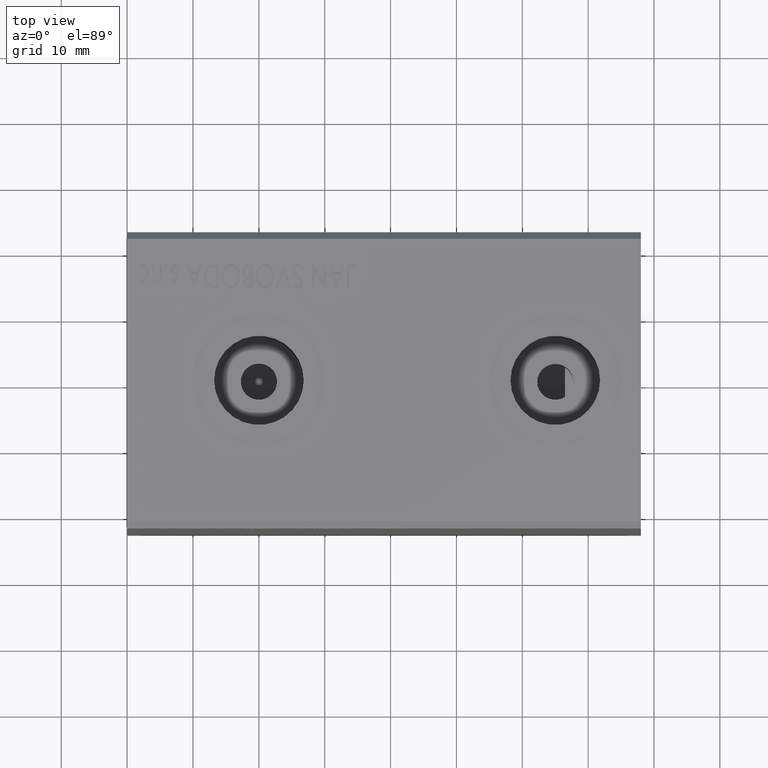
[diagram: clean part render]
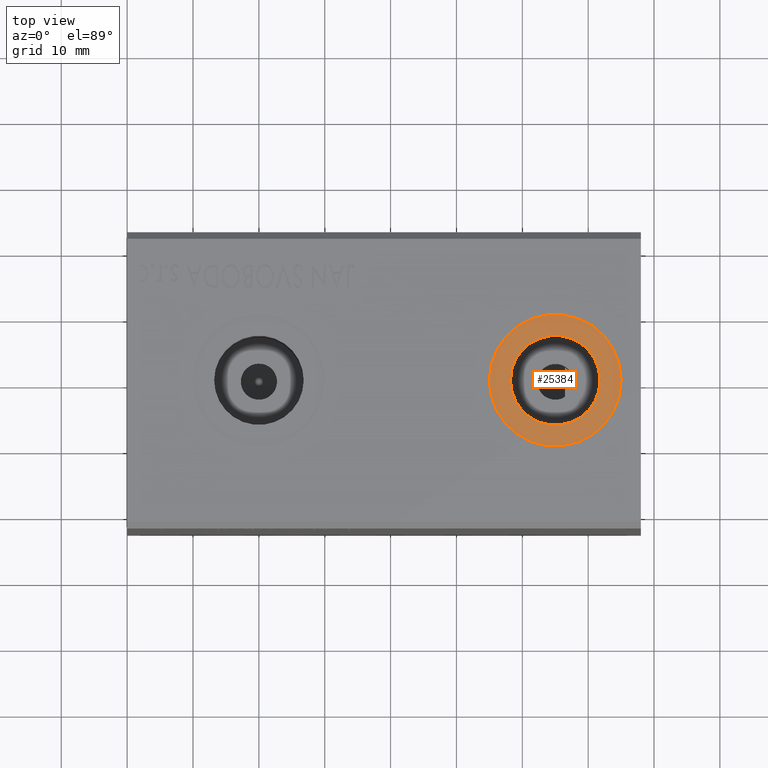
[diagram: same view with one face highlighted and labeled with its STEP entity id]
A machine part, top view. The second image highlights one B-rep face of the part: STEP entity #25384.
In plain terms, the highlighted planar face has unit normal (0, 0, 1).
Its self-contained STEP definition (entity closure, byte-faithful):
#72 = DIRECTION ( 'NONE',  ( 0.000000000000000000, 0.000000000000000000, 1.000000000000000000 ) ) ;
#654 = VERTEX_POINT ( 'NONE', #23886 ) ;
#688 = ORIENTED_EDGE ( 'NONE', *, *, #27217, .T. ) ;
#1987 = DIRECTION ( 'NONE',  ( 1.000000000000000000, 0.000000000000000000, -0.000000000000000000 ) ) ;
#4662 = CIRCLE ( 'NONE', #20441, 6.800000000000000711 ) ;
#5212 = FACE_OUTER_BOUND ( 'NONE', #28782, .T. ) ;
#6329 = CARTESIAN_POINT ( 'NONE',  ( 58.20000000000000284, -2.099391809845953265E-15, 32.39999999999999858 ) ) ;
#8803 = AXIS2_PLACEMENT_3D ( 'NONE', #17880, #38057, #1987 ) ;
#9476 = CIRCLE ( 'NONE', #16305, 6.800000000000000711 ) ;
#10203 = AXIS2_PLACEMENT_3D ( 'NONE', #14057, #17481, #10629 ) ;
#10426 = EDGE_LOOP ( 'NONE', ( #10892, #38585 ) ) ;
#10629 = DIRECTION ( 'NONE',  ( 1.000000000000000000, 0.000000000000000000, 0.000000000000000000 ) ) ;
#10630 = DIRECTION ( 'NONE',  ( 0.000000000000000000, 0.000000000000000000, 1.000000000000000000 ) ) ;
#10892 = ORIENTED_EDGE ( 'NONE', *, *, #19374, .F. ) ;
#14057 = CARTESIAN_POINT ( 'NONE',  ( 65.00000000000000000, -2.932151633266152588E-15, 32.39999999999999858 ) ) ;
#14058 = CARTESIAN_POINT ( 'NONE',  ( 65.00000000000000000, -2.932151633266152588E-15, 32.39999999999999858 ) ) ;
#16204 = CARTESIAN_POINT ( 'NONE',  ( 65.00000000000000000, -2.932151633266152588E-15, 32.39999999999999858 ) ) ;
#16305 = AXIS2_PLACEMENT_3D ( 'NONE', #33545, #72, #36763 ) ;
#16463 = AXIS2_PLACEMENT_3D ( 'NONE', #16204, #33144, #39164 ) ;
#16529 = CARTESIAN_POINT ( 'NONE',  ( 71.79999999999999716, -2.932151633266152588E-15, 32.39999999999999858 ) ) ;
#17481 = DIRECTION ( 'NONE',  ( 0.000000000000000000, 0.000000000000000000, 1.000000000000000000 ) ) ;
#17880 = CARTESIAN_POINT ( 'NONE',  ( 65.00000000000000000, -2.932151633266152588E-15, 32.39999999999999858 ) ) ;
#19374 = EDGE_CURVE ( 'NONE', #29954, #37979, #4662, .T. ) ;
#20441 = AXIS2_PLACEMENT_3D ( 'NONE', #14058, #10630, #32951 ) ;
#23886 = CARTESIAN_POINT ( 'NONE',  ( 54.99999999999999289, -1.707504834118798148E-15, 32.39999999999999858 ) ) ;
#24603 = EDGE_CURVE ( 'NONE', #37979, #29954, #9476, .T. ) ;
#24751 = FACE_BOUND ( 'NONE', #10426, .T. ) ;
#25384 = ADVANCED_FACE ( 'NONE', ( #24751, #5212 ), #31190, .T. ) ;
#26603 = ORIENTED_EDGE ( 'NONE', *, *, #34650, .T. ) ;
#27217 = EDGE_CURVE ( 'NONE', #654, #40315, #28725, .T. ) ;
#28725 = CIRCLE ( 'NONE', #10203, 10.00000000000000888 ) ;
#28782 = EDGE_LOOP ( 'NONE', ( #26603, #688 ) ) ;
#29954 = VERTEX_POINT ( 'NONE', #16529 ) ;
#31190 = PLANE ( 'NONE',  #8803 ) ;
#32951 = DIRECTION ( 'NONE',  ( 1.000000000000000000, 0.000000000000000000, 0.000000000000000000 ) ) ;
#33144 = DIRECTION ( 'NONE',  ( 0.000000000000000000, 0.000000000000000000, 1.000000000000000000 ) ) ;
#33545 = CARTESIAN_POINT ( 'NONE',  ( 65.00000000000000000, -2.932151633266152588E-15, 32.39999999999999858 ) ) ;
#34650 = EDGE_CURVE ( 'NONE', #40315, #654, #41153, .T. ) ;
#36763 = DIRECTION ( 'NONE',  ( 1.000000000000000000, 0.000000000000000000, 0.000000000000000000 ) ) ;
#37979 = VERTEX_POINT ( 'NONE', #6329 ) ;
#38042 = CARTESIAN_POINT ( 'NONE',  ( 75.00000000000001421, -2.932151633266152588E-15, 32.39999999999999858 ) ) ;
#38057 = DIRECTION ( 'NONE',  ( 0.000000000000000000, 0.000000000000000000, 1.000000000000000000 ) ) ;
#38585 = ORIENTED_EDGE ( 'NONE', *, *, #24603, .F. ) ;
#39164 = DIRECTION ( 'NONE',  ( 1.000000000000000000, 0.000000000000000000, 0.000000000000000000 ) ) ;
#40315 = VERTEX_POINT ( 'NONE', #38042 ) ;
#41153 = CIRCLE ( 'NONE', #16463, 10.00000000000000888 ) ;